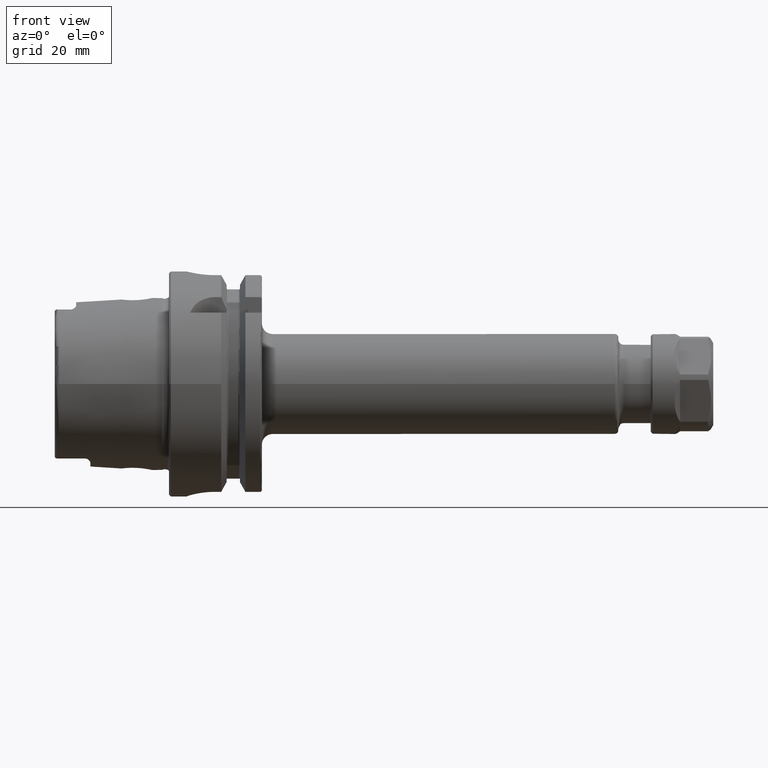
[diagram: clean part render]
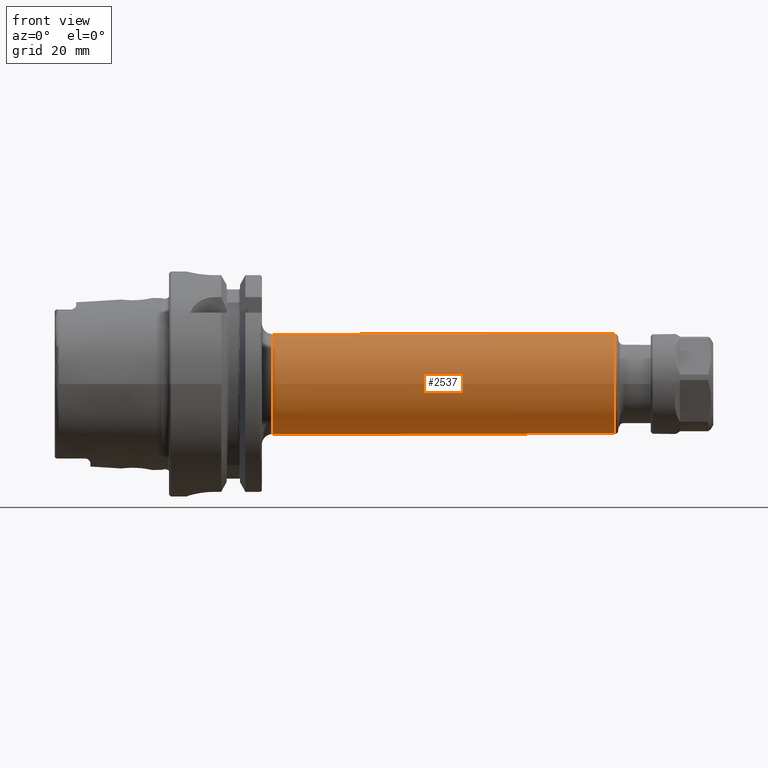
[diagram: same view with one face highlighted and labeled with its STEP entity id]
A machine part, front view. The second image highlights one B-rep face of the part: STEP entity #2537.
In plain terms, the highlighted cylindrical surface (bore or boss wall) has radius 14 mm, axis along (1, 0, 0).
Its self-contained STEP definition (entity closure, byte-faithful):
#261=FACE_OUTER_BOUND('',#416,.T.);
#416=EDGE_LOOP('',(#1726,#1727,#1728,#1729,#1730,#1731));
#580=LINE('',#3934,#726);
#726=VECTOR('',#3139,14.);
#882=CIRCLE('',#2771,14.);
#883=CIRCLE('',#2772,14.);
#884=CIRCLE('',#2774,14.);
#885=CIRCLE('',#2775,14.);
#1040=VERTEX_POINT('',#3927);
#1041=VERTEX_POINT('',#3929);
#1042=VERTEX_POINT('',#3933);
#1043=VERTEX_POINT('',#3935);
#1307=EDGE_CURVE('',#1040,#1041,#882,.T.);
#1308=EDGE_CURVE('',#1041,#1040,#883,.T.);
#1309=EDGE_CURVE('',#1041,#1042,#580,.T.);
#1310=EDGE_CURVE('',#1043,#1042,#884,.T.);
#1311=EDGE_CURVE('',#1042,#1043,#885,.T.);
#1726=ORIENTED_EDGE('',*,*,#1308,.F.);
#1727=ORIENTED_EDGE('',*,*,#1309,.T.);
#1728=ORIENTED_EDGE('',*,*,#1310,.F.);
#1729=ORIENTED_EDGE('',*,*,#1311,.F.);
#1730=ORIENTED_EDGE('',*,*,#1309,.F.);
#1731=ORIENTED_EDGE('',*,*,#1307,.F.);
#2488=CYLINDRICAL_SURFACE('',#2773,14.);
#2537=ADVANCED_FACE('',(#261),#2488,.T.);
#2771=AXIS2_PLACEMENT_3D('',#3930,#3133,#3134);
#2772=AXIS2_PLACEMENT_3D('',#3931,#3135,#3136);
#2773=AXIS2_PLACEMENT_3D('',#3932,#3137,#3138);
#2774=AXIS2_PLACEMENT_3D('',#3936,#3140,#3141);
#2775=AXIS2_PLACEMENT_3D('',#3937,#3142,#3143);
#3133=DIRECTION('center_axis',(1.,0.,0.));
#3134=DIRECTION('ref_axis',(0.,-1.,1.83697019872103E-16));
#3135=DIRECTION('center_axis',(1.,0.,0.));
#3136=DIRECTION('ref_axis',(0.,-1.,1.83697019872103E-16));
#3137=DIRECTION('center_axis',(1.,0.,0.));
#3138=DIRECTION('ref_axis',(0.,1.,0.));
#3139=DIRECTION('',(-1.,0.,0.));
#3140=DIRECTION('center_axis',(-1.,0.,0.));
#3141=DIRECTION('ref_axis',(0.,-1.,-1.22464679914735E-16));
#3142=DIRECTION('center_axis',(-1.,0.,0.));
#3143=DIRECTION('ref_axis',(0.,-1.,-1.22464679914735E-16));
#3927=CARTESIAN_POINT('',(124.8,-1.71450551880629E-15,14.));
#3929=CARTESIAN_POINT('',(124.8,-14.,-1.71450551880629E-15));
#3930=CARTESIAN_POINT('Origin',(124.8,0.,0.));
#3931=CARTESIAN_POINT('Origin',(124.8,0.,0.));
#3932=CARTESIAN_POINT('Origin',(75.9,0.,0.));
#3933=CARTESIAN_POINT('',(29.,-14.,-1.71450551880629E-15));
#3934=CARTESIAN_POINT('',(75.9,-14.,-1.71450551880629E-15));
#3935=CARTESIAN_POINT('',(29.,-1.71450551880629E-15,-14.));
#3936=CARTESIAN_POINT('Origin',(29.,0.,0.));
#3937=CARTESIAN_POINT('Origin',(29.,0.,0.));